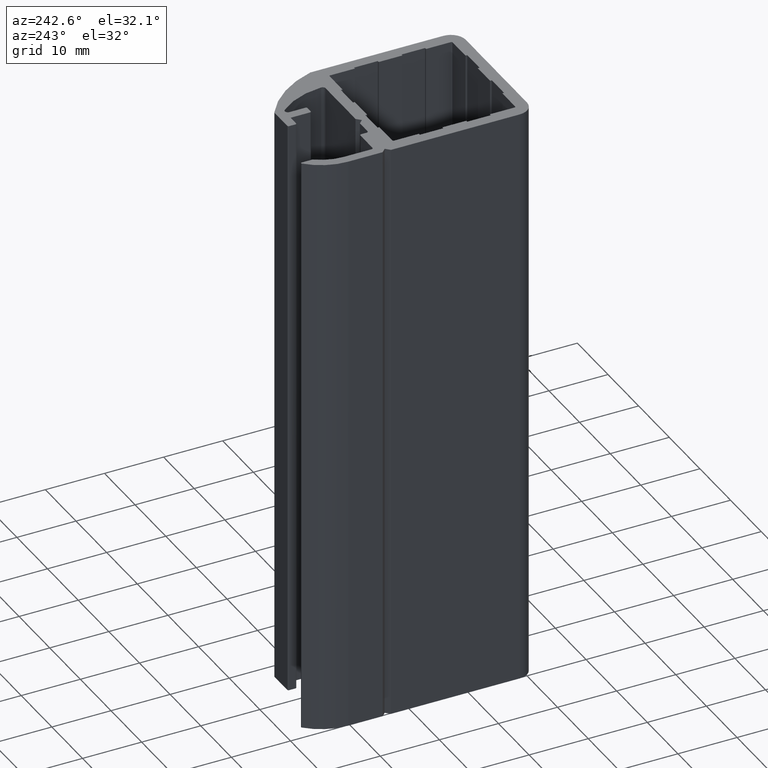
[diagram: clean part render]
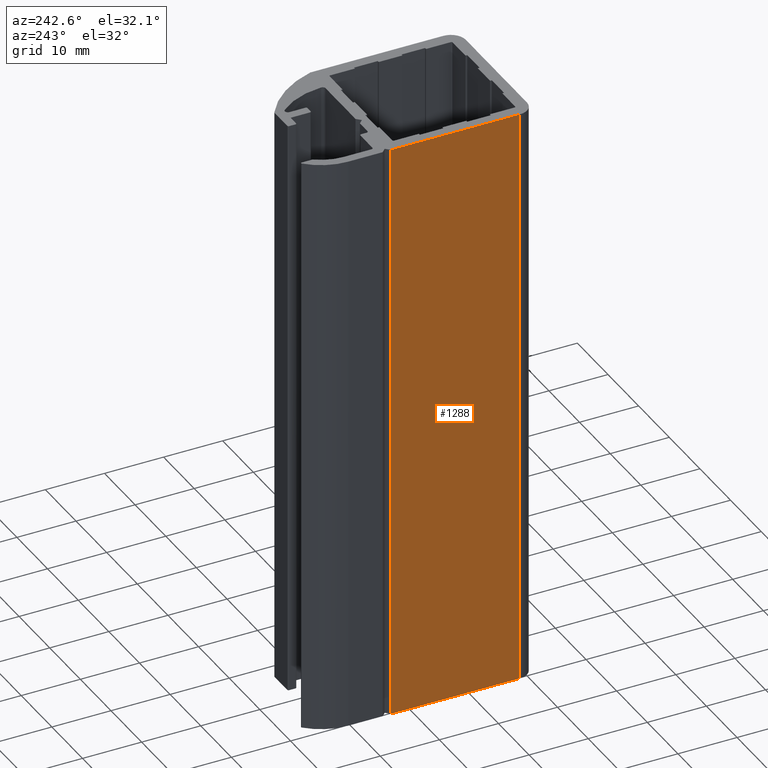
[diagram: same view with one face highlighted and labeled with its STEP entity id]
A machine part, auxiliary view. The second image highlights one B-rep face of the part: STEP entity #1288.
In plain terms, the highlighted planar face has unit normal (-1, 0, 0).
Its self-contained STEP definition (entity closure, byte-faithful):
#1232=CARTESIAN_POINT('',(-12.499999999874944,24.292893218570498,0.0));
#1233=VERTEX_POINT('',#1232);
#1240=CARTESIAN_POINT('',(-12.499999999874944,24.292893218570498,100.0));
#1241=VERTEX_POINT('',#1240);
#1242=CARTESIAN_POINT('',(-12.499999999874944,24.292893218570498,0.0));
#1243=DIRECTION('',(0.0,0.0,1.0));
#1244=VECTOR('',#1243,100.0);
#1245=LINE('',#1242,#1244);
#1246=EDGE_CURVE('',#1233,#1241,#1245,.T.);
#1258=CARTESIAN_POINT('',(-12.499999999874944,24.292893218570498,0.0));
#1259=DIRECTION('',(-1.0,0.0,0.0));
#1260=DIRECTION('',(0.0,-1.0,0.0));
#1261=AXIS2_PLACEMENT_3D('',#1258,#1259,#1260);
#1262=PLANE('',#1261);
#1263=CARTESIAN_POINT('',(-12.499999999874944,2.499999999974904,0.0));
#1264=VERTEX_POINT('',#1263);
#1265=CARTESIAN_POINT('',(-12.499999999874944,24.292893218570498,0.0));
#1266=DIRECTION('',(0.0,-1.0,0.0));
#1267=VECTOR('',#1266,21.792893218595594);
#1268=LINE('',#1265,#1267);
#1269=EDGE_CURVE('',#1233,#1264,#1268,.T.);
#1270=ORIENTED_EDGE('',*,*,#1269,.T.);
#1271=CARTESIAN_POINT('',(-12.499999999874944,2.499999999974904,100.0));
#1272=VERTEX_POINT('',#1271);
#1273=CARTESIAN_POINT('',(-12.499999999874944,2.499999999974904,0.0));
#1274=DIRECTION('',(0.0,0.0,1.0));
#1275=VECTOR('',#1274,100.0);
#1276=LINE('',#1273,#1275);
#1277=EDGE_CURVE('',#1264,#1272,#1276,.T.);
#1278=ORIENTED_EDGE('',*,*,#1277,.T.);
#1279=CARTESIAN_POINT('',(-12.499999999874944,24.292893218570498,100.0));
#1280=DIRECTION('',(0.0,-1.0,0.0));
#1281=VECTOR('',#1280,21.792893218595594);
#1282=LINE('',#1279,#1281);
#1283=EDGE_CURVE('',#1241,#1272,#1282,.T.);
#1284=ORIENTED_EDGE('',*,*,#1283,.F.);
#1285=ORIENTED_EDGE('',*,*,#1246,.F.);
#1286=EDGE_LOOP('',(#1270,#1278,#1284,#1285));
#1287=FACE_OUTER_BOUND('',#1286,.T.);
#1288=ADVANCED_FACE('',(#1287),#1262,.T.);